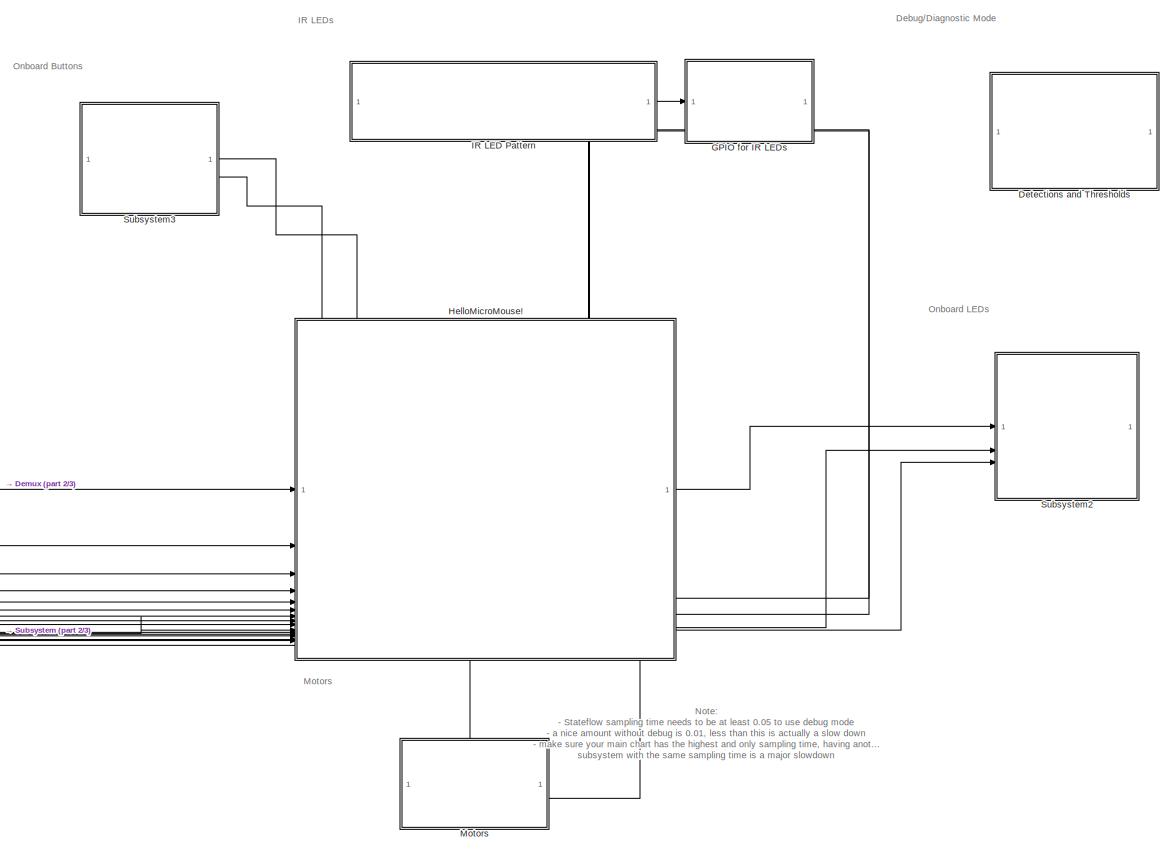
[diagram: root canvas - part 1/3, right side, full height]
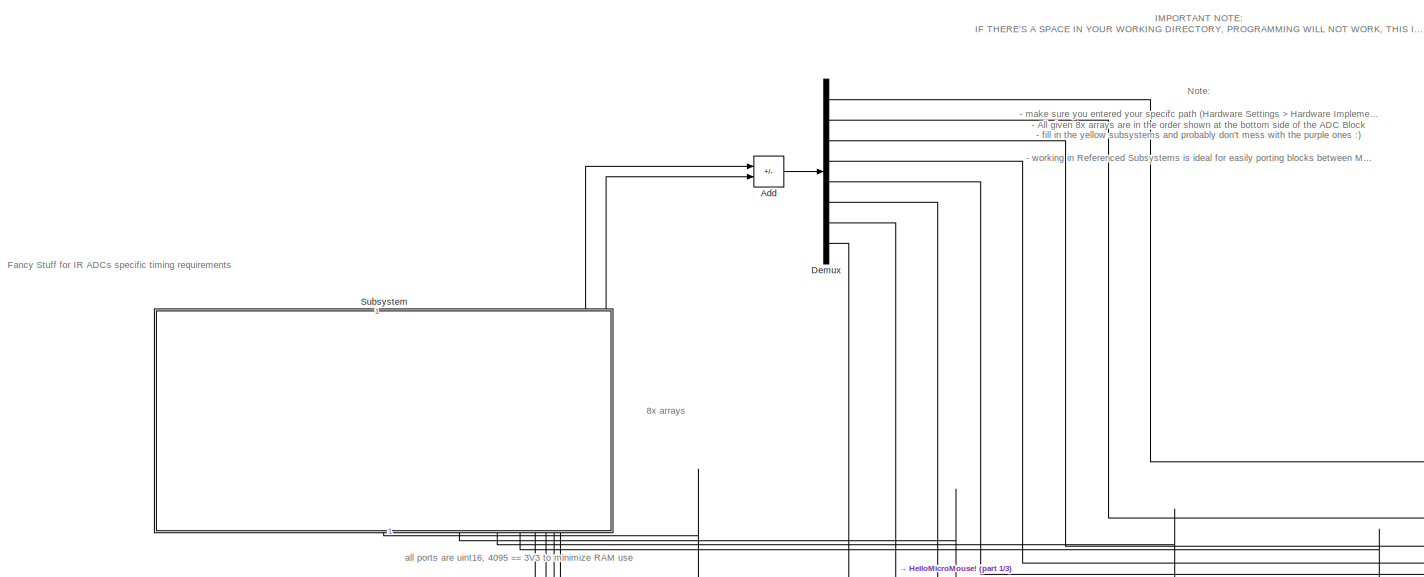
[diagram: root canvas - part 2/3, top left region]
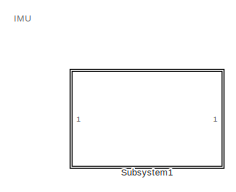
[diagram: root canvas - part 3/3, bottom left region]
MODEL slx_c873ccdcbb2f
KIND model
CONFIG AbsTol = auto
CONFIG EnableMultiTasking = on
CONFIG FixedStep = auto
CONFIG MaxStep = auto
CONFIG MinStep = auto
CONFIG RelTol = 1e-3
CONFIG SampleTimeConstraint = Unconstrained
CONFIG SolverName = FixedStepAuto
CONFIG StartTime = 0.0
CONFIG StopTime = 10.0
BLOCK [Sum] Add
  IconShape = rectangular
  Inputs = +-
BLOCK [Demux] Demux
  Outputs = 8
BLOCK [SubSystem] Detections and Thresholds
  ReferencedSubsystem = DiagnosticMode
BLOCK [SubSystem] GPIO for IR LEDs
  ReferencedSubsystem = IR_LEDs
  SystemSampleTime = samplingTime
  TreatAsAtomicUnit = on
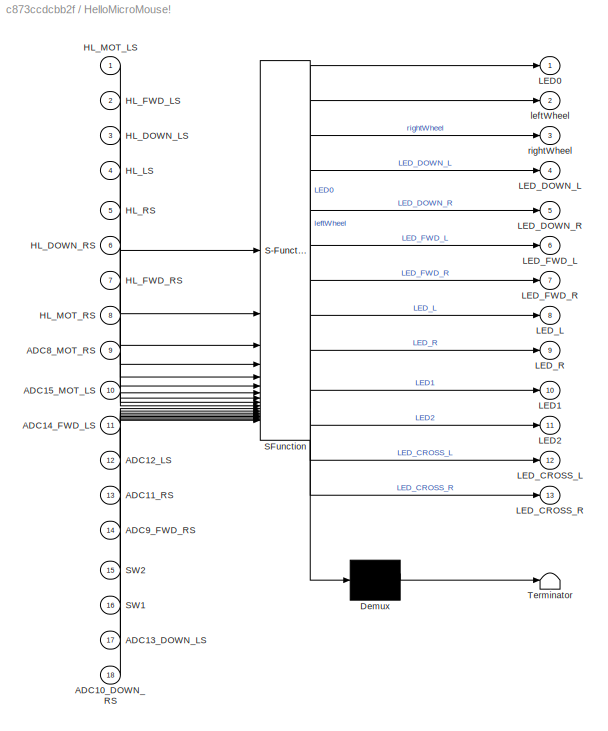
BLOCK [SubSystem] HelloMicroMouse!
  ErrorFcn = Stateflow.Translate.translate
  PermitHierarchicalResolution = ExplicitOnly
  PortSchema = {"entries":[{"content":{"sides":[{"content":{"connectorIds":["In1","In2","In3","In4","In5","In6","In7","In8","In9","In14","In18","In13","In12","In17","In11","In10"]},"type":"ConnectorPlacement.EquallySpacedRectSide","uuid":"f52daa4f-6374-42e5-9ef1-0ccc99d09b58"},{"content":{"connectorIds":["Out1","Out10","Out11"],"side":"RIGHT"},"type":"ConnectorPlacement.EquallySpacedRectSide","uuid":"94b478cc-4d...<+581ch>
  SFBlockType = Chart
  TreatAsAtomicUnit = on
BLOCK [Demux] HelloMicroMouse!/ Demux 
  Outputs = 1
BLOCK [S-Function] HelloMicroMouse!/ SFunction 
  EnableBusSupport = on
  FunctionName = sf_sfun
  PortCounts = [18 14]
  SFcnIsStateOwnerBlock = off
  SFunctionDeploymentMode = off
  Tag = Stateflow S-Function 2
BLOCK [Terminator] HelloMicroMouse!/ Terminator 
BLOCK [Inport] HelloMicroMouse!/ADC10_DOWN_RS
  Port = 18
BLOCK [Inport] HelloMicroMouse!/ADC11_RS
  Port = 13
BLOCK [Inport] HelloMicroMouse!/ADC12_LS
  Port = 12
BLOCK [Inport] HelloMicroMouse!/ADC13_DOWN_LS
  Port = 17
BLOCK [Inport] HelloMicroMouse!/ADC14_FWD_LS
  Port = 11
BLOCK [Inport] HelloMicroMouse!/ADC15_MOT_LS
  Port = 10
BLOCK [Inport] HelloMicroMouse!/ADC8_MOT_RS
  Port = 9
BLOCK [Inport] HelloMicroMouse!/ADC9_FWD_RS
  Port = 14
BLOCK [Inport] HelloMicroMouse!/HL_DOWN_LS
  Port = 3
BLOCK [Inport] HelloMicroMouse!/HL_DOWN_RS
  Port = 6
BLOCK [Inport] HelloMicroMouse!/HL_FWD_LS
  Port = 2
BLOCK [Inport] HelloMicroMouse!/HL_FWD_RS
  Port = 7
BLOCK [Inport] HelloMicroMouse!/HL_LS
  Port = 4
BLOCK [Inport] HelloMicroMouse!/HL_MOT_LS
BLOCK [Inport] HelloMicroMouse!/HL_MOT_RS
  Port = 8
BLOCK [Inport] HelloMicroMouse!/HL_RS
  Port = 5
BLOCK [Outport] HelloMicroMouse!/LED0
BLOCK [Outport] HelloMicroMouse!/LED1
  Port = 10
BLOCK [Outport] HelloMicroMouse!/LED2
  Port = 11
BLOCK [Outport] HelloMicroMouse!/LED_CROSS_L
  Port = 12
BLOCK [Outport] HelloMicroMouse!/LED_CROSS_R
  Port = 13
BLOCK [Outport] HelloMicroMouse!/LED_DOWN_L
  Port = 4
BLOCK [Outport] HelloMicroMouse!/LED_DOWN_R
  Port = 5
BLOCK [Outport] HelloMicroMouse!/LED_FWD_L
  Port = 6
BLOCK [Outport] HelloMicroMouse!/LED_FWD_R
  Port = 7
BLOCK [Outport] HelloMicroMouse!/LED_L
  Port = 8
BLOCK [Outport] HelloMicroMouse!/LED_R
  Port = 9
BLOCK [Inport] HelloMicroMouse!/SW1
  Port = 16
BLOCK [Inport] HelloMicroMouse!/SW2
  Port = 15
BLOCK [Outport] HelloMicroMouse!/leftWheel
  Port = 2
BLOCK [Outport] HelloMicroMouse!/rightWheel
  Port = 3
BLOCK [SubSystem] IR LED Pattern
  PortSchema = {"entries":[{"content":{"sides":[{"content":{},"type":"ConnectorPlacement.EquallySpacedRectSide","uuid":"bebb72a7-933c-42e2-8276-ac4f31a32b24"},{"content":{"connectorIds":["Out1"],"side":"RIGHT"},"type":"ConnectorPlacement.EquallySpacedRectSide","uuid":"e4b34d82-914a-4887-8037-8bf6431a0d23"},{"content":{"side":"TOP"},"type":"ConnectorPlacement.EquallySpacedRectSide","uuid":"ed031d14-68a8-4388-b5b1...<+391ch>
  ReferencedSubsystem = IR_LED_Pattern
BLOCK [SubSystem] Motors
  ReferencedSubsystem = Motors
BLOCK [SubSystem] Subsystem
  PortSchema = {"entries":[{"content":{"sides":[{"content":{},"type":"ConnectorPlacement.EquallySpacedRectSide","uuid":"be6b81d5-7a49-4e34-b35f-0c07892094fc"},{"content":{"connectorIds":["Out1","Out2","Out3","Out4","Out5","Out6","Out7","Out8"],"side":"RIGHT"},"type":"ConnectorPlacement.EquallySpacedRectSide","uuid":"5e22590a-b7c0-4c63-8de4-8d81fd6c3849"},{"content":{"connectorIds":["Out12","Out10","Out11"],"side...<+440ch>
  ReferencedSubsystem = ADC_Block
BLOCK [SubSystem] Subsystem1
  ReferencedSubsystem = IMU
BLOCK [SubSystem] Subsystem2
  ReferencedSubsystem = LEDs
BLOCK [SubSystem] Subsystem3
  ReferencedSubsystem = SWs
ANNOTATION (root): 8x arrays
ANNOTATION (root): IMPORTANT NOTE: IF THERE'S A SPACE IN YOUR WORKING DIRECTORY, PROGRAMMING WILL NOT WORK, THIS INCLUDES A SPACE IN YOUR PC's USERNAME (Space is an argument delimiter for terminal things)
ANNOTATION (root): Note: - Stateflow sampling time needs to be at least 0.05 to use debug mode - a nice amount without debug is 0.01, less than this is actually a slow down - make sure your main chart has the highest and only sampling time, having another subsystem with the same sampling time is a major slowdown
ANNOTATION (root): Debug/Diagnostic Mode
ANNOTATION (root): Fancy Stuff for IR ADCs specific timing requirements
ANNOTATION (root): IMU
ANNOTATION (root): IR LEDs
ANNOTATION (root): Motors
ANNOTATION (root): Note: - make sure you entered your specifc path (Hardware Settings > Hardware Implementation) to the given MicroMouseProgramming.ioc - All given 8x arrays are in the order shown at the bottom side of the ADC Block - fill in the yellow subsystems and probably don't mess with the purple ones :) - working in Referenced Subsystems is ideal for easily porting blocks between MATLAB instances, and openin...<+127ch>
ANNOTATION (root): Onboard Buttons
ANNOTATION (root): Onboard LEDs
ANNOTATION (root): all ports are uint16, 4095 == 3V3 to minimize RAM use
LINE Add:1 -> Demux:1
LINE Demux:1 -> HelloMicroMouse!:1
LINE Demux:2 -> HelloMicroMouse!:2
LINE Demux:3 -> HelloMicroMouse!:3
LINE Demux:4 -> HelloMicroMouse!:4
LINE Demux:5 -> HelloMicroMouse!:5
LINE Demux:6 -> HelloMicroMouse!:6
LINE Demux:7 -> HelloMicroMouse!:7
LINE Demux:8 -> HelloMicroMouse!:8
LINE HelloMicroMouse!:1 -> Subsystem2:1
LINE HelloMicroMouse!:10 -> Subsystem2:2
LINE HelloMicroMouse!:11 -> Subsystem2:3
LINE HelloMicroMouse!:12 -> IR LED Pattern:7
LINE HelloMicroMouse!:13 -> IR LED Pattern:8
LINE HelloMicroMouse!:2 -> Motors:2
LINE HelloMicroMouse!:3 -> Motors:1
LINE HelloMicroMouse!:4 -> IR LED Pattern:1
LINE HelloMicroMouse!:5 -> IR LED Pattern:2
LINE HelloMicroMouse!:6 -> IR LED Pattern:3
LINE HelloMicroMouse!:7 -> IR LED Pattern:4
LINE HelloMicroMouse!:8 -> IR LED Pattern:5
LINE HelloMicroMouse!:9 -> IR LED Pattern:6
LINE IR LED Pattern:1 -> GPIO for IR LEDs:1
LINE Subsystem3:1 -> HelloMicroMouse!:16
LINE Subsystem3:2 -> HelloMicroMouse!:15
LINE Subsystem:1 -> HelloMicroMouse!:9
LINE Subsystem:10 -> Add:1
LINE Subsystem:11 -> Add:2
LINE Subsystem:2 -> HelloMicroMouse!:14
LINE Subsystem:3 -> HelloMicroMouse!:18
LINE Subsystem:4 -> HelloMicroMouse!:13
LINE Subsystem:5 -> HelloMicroMouse!:12
LINE Subsystem:6 -> HelloMicroMouse!:17
LINE Subsystem:7 -> HelloMicroMouse!:11
LINE Subsystem:8 -> HelloMicroMouse!:10
CHART HelloMicroMouse! states=12 transitions=16
  STATE_LABEL 'LineFollowing\nentry:\nLED0 = false;\nLED_DOWN_L = 1;\nLED_DOWN_R = 1;\nLED_FWD_L = 1;\nLED_FWD_R = 1;\nLED_L = 0;\nLED_R = 0;\nLED_CROSS_L = 0;\nLED_CROSS_R = 0;\n%Thresholds\n%DOWN_L_TH = 3900;\n%DOWN_R_TH = 3800;\n%FWD_L_TH = 2800;\n%FWD_R_TH = 2800;'
  STATE_LABEL 'Forward\nentry:\nLED0 = false;\nLED1 = true;\nLED2 = false;\nleftWheel = -75;\nrightWheel = -75;'
  STATE_LABEL 'TurnRight\nentry:\nLED0 = true;\nLED1 = false;\nleftWheel = -75;\nrightWheel = 0;'
  STATE_LABEL 'TurnLeft\nentry:\nLED2 = true;\nLED1 = false;\nleftWheel = 0;\nrightWheel = -75;'
  STATE_LABEL 'Stop\nentry:\nleftWheel = 0;\nrightWheel = 0;'
  STATE_LABEL 'Wall'
  STATE_LABEL 'Flip\nentry:\n%if(ADC>2978)\nleftWheel = -75;\nrightWheel = 75;\n%end\n%if(HL_RS>3102)\n%leftWheel = 75;\n%rightWheel = -75;\n%end'
  STATE_LABEL 'Stop\nentry:\nleftWheel = 0;\nrightWheel = 0;'
  STATE_LABEL 'after(0.5,sec)'
  STATE_LABEL 'after(60,sec)'
  STATE_LABEL '[ADC10_DOWN_RS>3600]'
  STATE_LABEL '[ADC13_DOWN_LS<3800]'
  STATE_LABEL '[ADC10_DOWN_RS>3900]'
  STATE_LABEL '[ADC13_DOWN_LS>3850]'
  STATE_LABEL '[ADC14_FWD_LS>FWD_L_TH||ADC9_FWD_RS>FWD_R_TH]'
  STATE_LABEL '[ADC14_FWD_LS<FWD_L_TH&&ADC9_FWD_RS<FWD_R_TH]'
  STATE_LABEL 'Forward\nentry:\nLED0 = false;\nLED1 = true;\nLED2 = false;\nleftWheel = -75;\nrightWheel = -75;'
  STATE_LABEL 'TurnRight\nentry:\nLED0 = true;\nLED1 = false;\nleftWheel = -75;\nrightWheel = 0;'
  STATE_LABEL 'TurnLeft\nentry:\nLED2 = true;\nLED1 = false;\nleftWheel = 0;\nrightWheel = -75;'
  STATE_LABEL 'Stop\nentry:\nleftWheel = 0;\nrightWheel = 0;'
  STATE_LABEL 'Wall'
  STATE_LABEL 'Flip\nentry:\n%if(ADC>2978)\nleftWheel = -75;\nrightWheel = 75;\n%end\n%if(HL_RS>3102)\n%leftWheel = 75;\n%rightWheel = -75;\n%end'
  STATE_LABEL 'Stop\nentry:\nleftWheel = 0;\nrightWheel = 0;'
  STATE_LABEL 'after(0.5,sec)'
  STATE_LABEL 'after(60,sec)'
  STATE_LABEL 'Wall'
  STATE_LABEL 'Flip\nentry:\n%if(ADC>2978)\nleftWheel = -75;\nrightWheel = 75;\n%end\n%if(HL_RS>3102)\n%leftWheel = 75;\n%rightWheel = -75;\n%end'
  STATE_LABEL 'Stop\nentry:\nleftWheel = 0;\nrightWheel = 0;'
  STATE_LABEL 'StandBy\nduring:\nLED0 = ~LED0;'
  STATE_LABEL 'Stop\nentry:\nLED0 = false;\nLED_DOWN_L = 0;\nLED_DOWN_R = 0;\nLED_FWD_L = 0;\nLED_FWD_R = 0;\nLED_L = 0;\nLED_R = 0;\nLED_CROSS_L = 0;\nLED_CROSS_R = 0;\nleftWheel = 0;\nrightWheel = 0;'
  STATE_LABEL 'Calibration\nentry:\nLED0 = true;\nLED1 = false;\nLED2 = false;\nLED_DOWN_L = 1;\nLED_DOWN_R = 1;\nLED_FWD_L = 1;\nLED_FWD_R = 1;\nLED_L = 0;\nLED_R = 0;\nLED_CROSS_L = 0;\nLED_CROSS_R = 0;\n%leftWheel = -75;\n%rightWheel = 75;\nafter(2,sec);\nDOWN_L_TH = ADC13_DOWN_LS;\nDOWN_R_TH = ADC10_DOWN_RS;\nFWD_L_TH = 4095;\nFWD_R_TH = 4095;\n%end\n%during:\n%if(ADC13_DOWN_LS<DOWN_L_TH)\n%DOWN_L_TH = ADC13_DOWN_LS;\n%end\n%if(ADC1...<+172ch>'
  STATE_LABEL 'IdleState\nentry:\nleftWheel = 0;\nrightWheel = 0;\nend\nduring:\nLED0 = ~LED0'
CHART  states=0 transitions=0
